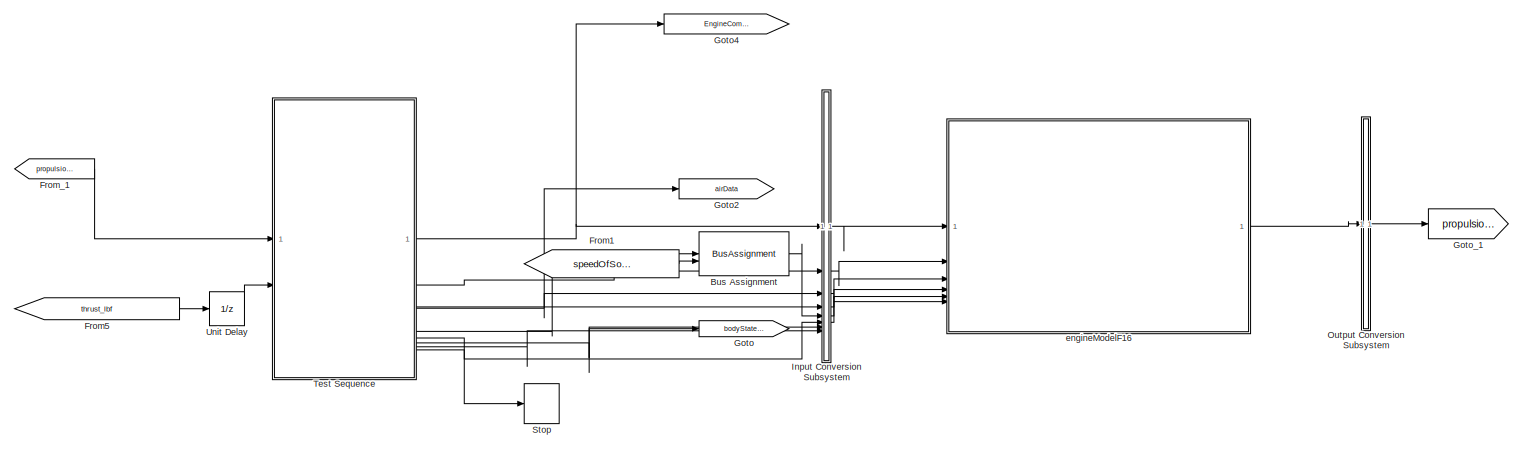
[diagram: root canvas - part 1/2, full width, top band]
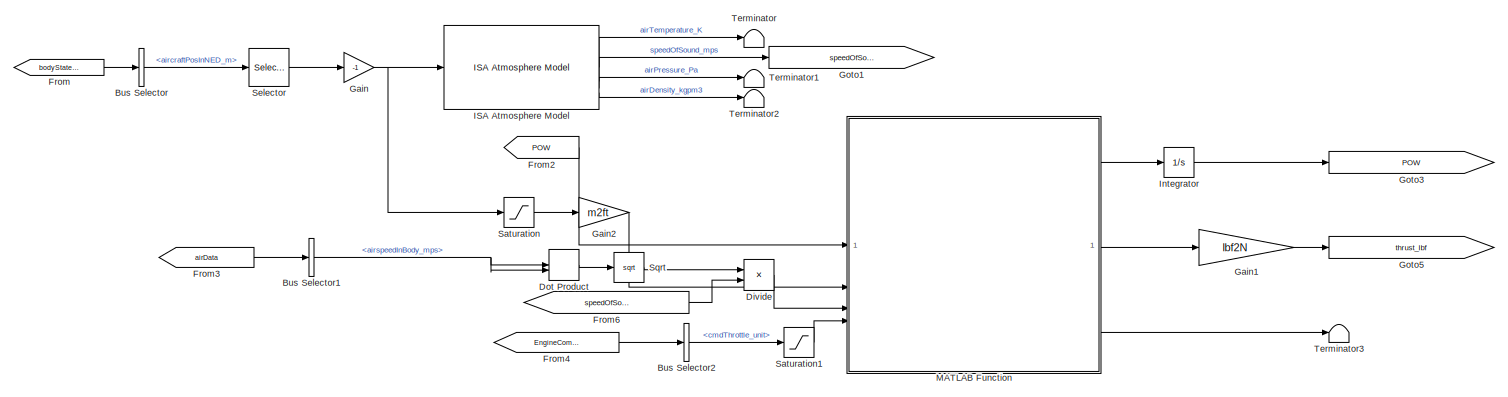
[diagram: root canvas - part 2/2, full width, bottom band]
MODEL slx_ce1b699dad0e
KIND model
CONFIG AbsTol = auto
CONFIG EnableMultiTasking = off
CONFIG FixedStep = auto
CONFIG MaxStep = auto
CONFIG MinStep = auto
CONFIG RelTol = 1e-3
CONFIG SampleTimeConstraint = Unconstrained
CONFIG SolverName = VariableStepAuto
CONFIG StartTime = 0.0
CONFIG StopTime = 10.0
BLOCK [BusAssignment] Bus Assignment
  AssignedSignals = speedOfSound_mps
BLOCK [BusSelector] Bus Selector
  OutputSignals = aircraftPosInNED_m
BLOCK [BusSelector] Bus Selector1
  OutputSignals = airspeedInBody_mps
BLOCK [BusSelector] Bus Selector2
  OutputSignals = cmdThrottle_unit
BLOCK [Product] Divide
  Inputs = */
BLOCK [DotProduct] Dot Product
  OutDataTypeStr = Inherit: Inherit via internal rule
BLOCK [From] From
  GotoTag = bodyStateBus
BLOCK [From] From1
  GotoTag = speedOfSound_mps
BLOCK [From] From2
  GotoTag = POW
BLOCK [From] From3
  GotoTag = airData
BLOCK [From] From4
  GotoTag = EngineCommandBus
BLOCK [From] From5
  GotoTag = thrust_lbf
BLOCK [From] From6
  GotoTag = speedOfSound_mps
BLOCK [From] From_1
  GotoTag = propulsionBus
BLOCK [Gain] Gain
  Gain = -1
BLOCK [Gain] Gain1
  Gain = lbf2N
BLOCK [Gain] Gain2
  Gain = m2ft
BLOCK [Goto] Goto
  GotoTag = bodyStateBus
BLOCK [Goto] Goto1
  GotoTag = speedOfSound_mps
BLOCK [Goto] Goto2
  GotoTag = airData
BLOCK [Goto] Goto3
  GotoTag = POW
BLOCK [Goto] Goto4
  GotoTag = EngineCommandBus
BLOCK [Goto] Goto5
  GotoTag = thrust_lbf
BLOCK [Goto] Goto_1
  GotoTag = propulsionBus
BLOCK [Reference] ISA Atmosphere Model  REF=aerolibatmos2/ISA Atmosphere Model
  SourceBlock = aerolibatmos2/ISA Atmosphere Model
  SourceType = International Standard Atmosphere Model
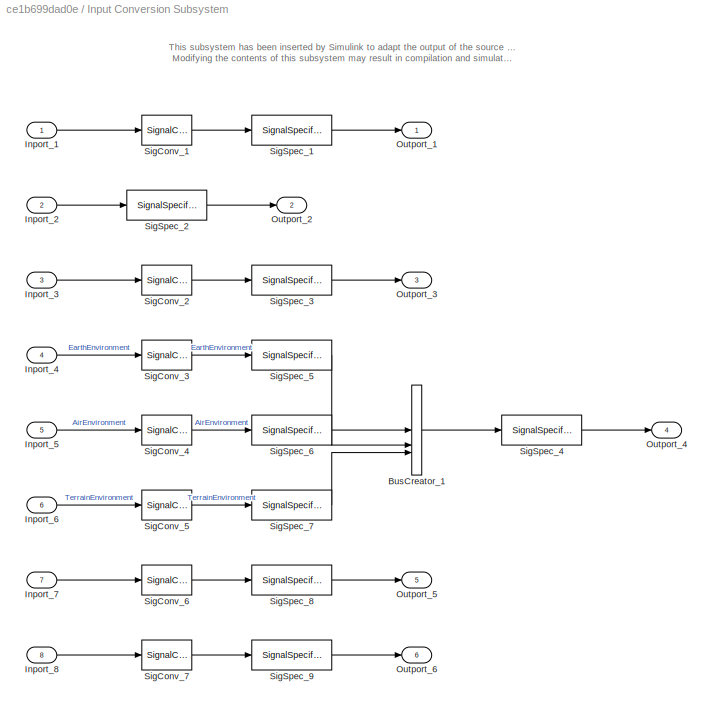
BLOCK [SubSystem] Input Conversion Subsystem
  AttributesFormatString = %<Description>
  Description = Signal spec.\nand routing
  Permissions = ReadOnly
  PermitHierarchicalResolution = ExplicitOnly
  Tag = __SLT_ICS__
  TreatAsGroupedWhenPropagatingVariantConditions = off
  UserDataPersistent = on
BLOCK [BusCreator] Input Conversion Subsystem/BusCreator_1
  InheritFromInputs = on
  Inputs = 3
  OutDataTypeStr = Bus: EnvironmentBus
BLOCK [Inport] Input Conversion Subsystem/Inport_1
BLOCK [Inport] Input Conversion Subsystem/Inport_2
  Port = 2
BLOCK [Inport] Input Conversion Subsystem/Inport_3
  Port = 3
BLOCK [Inport] Input Conversion Subsystem/Inport_4
  Port = 4
BLOCK [Inport] Input Conversion Subsystem/Inport_5
  Port = 5
BLOCK [Inport] Input Conversion Subsystem/Inport_6
  Port = 6
BLOCK [Inport] Input Conversion Subsystem/Inport_7
  Port = 7
BLOCK [Inport] Input Conversion Subsystem/Inport_8
  Port = 8
BLOCK [Outport] Input Conversion Subsystem/Outport_1
BLOCK [Outport] Input Conversion Subsystem/Outport_2
  Port = 2
BLOCK [Outport] Input Conversion Subsystem/Outport_3
  Port = 3
BLOCK [Outport] Input Conversion Subsystem/Outport_4
  Port = 4
BLOCK [Outport] Input Conversion Subsystem/Outport_5
  Port = 5
BLOCK [Outport] Input Conversion Subsystem/Outport_6
  Port = 6
BLOCK [SignalConversion] Input Conversion Subsystem/SigConv_1
  ConversionOutput = Virtual bus
  OverrideOpt = off
BLOCK [SignalConversion] Input Conversion Subsystem/SigConv_2
  ConversionOutput = Virtual bus
  OverrideOpt = off
BLOCK [SignalConversion] Input Conversion Subsystem/SigConv_3
  ConversionOutput = Nonvirtual bus
  OverrideOpt = off
BLOCK [SignalConversion] Input Conversion Subsystem/SigConv_4
  ConversionOutput = Nonvirtual bus
  OverrideOpt = off
BLOCK [SignalConversion] Input Conversion Subsystem/SigConv_5
  ConversionOutput = Nonvirtual bus
  OverrideOpt = off
BLOCK [SignalConversion] Input Conversion Subsystem/SigConv_6
  ConversionOutput = Virtual bus
  OverrideOpt = off
BLOCK [SignalConversion] Input Conversion Subsystem/SigConv_7
  ConversionOutput = Virtual bus
  OverrideOpt = off
BLOCK [SignalSpecification] Input Conversion Subsystem/SigSpec_1
  OutDataTypeStr = Bus: EngineCommandBus
BLOCK [SignalSpecification] Input Conversion Subsystem/SigSpec_2
  Dimensions = [1]
  OutDataTypeStr = double
  SampleTime = [-1, 0]
  SignalType = real
  VarSizeSig = No
BLOCK [SignalSpecification] Input Conversion Subsystem/SigSpec_3
  OutDataTypeStr = Bus: AirDataBus
BLOCK [SignalSpecification] Input Conversion Subsystem/SigSpec_4
  OutDataTypeStr = Bus: EnvironmentBus
  SampleTime = [-1, 0]
BLOCK [SignalSpecification] Input Conversion Subsystem/SigSpec_5
  BusOutputAsStruct = on
  Dimensions = [1]
  OutDataTypeStr = Bus: EarthEnvironmentBus
  SignalType = real
  VarSizeSig = No
BLOCK [SignalSpecification] Input Conversion Subsystem/SigSpec_6
  BusOutputAsStruct = on
  Dimensions = [1]
  OutDataTypeStr = Bus: AirEnvironmentBus
  SignalType = real
  VarSizeSig = No
BLOCK [SignalSpecification] Input Conversion Subsystem/SigSpec_7
  BusOutputAsStruct = on
  Dimensions = [1]
  OutDataTypeStr = Bus: TerrainEnvironmentBus
  SignalType = real
  VarSizeSig = No
BLOCK [SignalSpecification] Input Conversion Subsystem/SigSpec_8
  OutDataTypeStr = Bus: BodyStateBus
BLOCK [SignalSpecification] Input Conversion Subsystem/SigSpec_9
  OutDataTypeStr = Bus: FailureBus
BLOCK [Integrator] Integrator
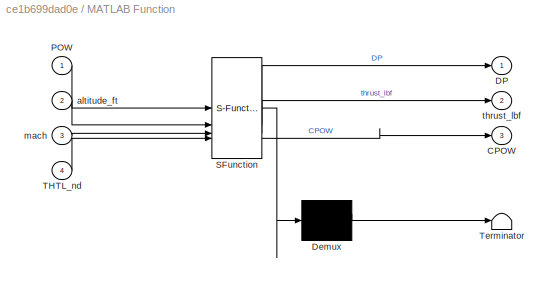
BLOCK [SubSystem] MATLAB Function
  ErrorFcn = Stateflow.Translate.translate
  PermitHierarchicalResolution = ExplicitOnly
  SFBlockType = MATLAB Function
  TreatAsAtomicUnit = on
BLOCK [Demux] MATLAB Function/ Demux 
  Outputs = 1
BLOCK [S-Function] MATLAB Function/ SFunction 
  EnableBusSupport = on
  FunctionName = sf_sfun
  PortCounts = [4 4]
  SFcnIsStateOwnerBlock = off
  SFunctionDeploymentMode = off
  Tag = Stateflow S-Function 2
BLOCK [Terminator] MATLAB Function/ Terminator 
BLOCK [Outport] MATLAB Function/CPOW
  Port = 3
BLOCK [Outport] MATLAB Function/DP
BLOCK [Inport] MATLAB Function/POW
BLOCK [Inport] MATLAB Function/THTL_nd
  Port = 4
BLOCK [Inport] MATLAB Function/altitude_ft
  Port = 2
BLOCK [Inport] MATLAB Function/mach
  Port = 3
BLOCK [Outport] MATLAB Function/thrust_lbf
  Port = 2
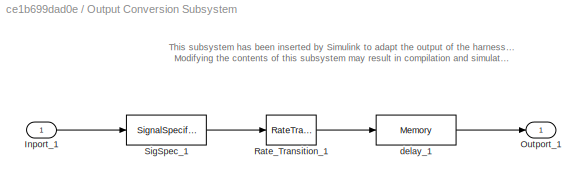
BLOCK [SubSystem] Output Conversion Subsystem
  AttributesFormatString = %<Description>
  Description = Signal spec.\nand routing
  Permissions = ReadOnly
  PermitHierarchicalResolution = ExplicitOnly
  Tag = __SLT_OCS__
  TreatAsGroupedWhenPropagatingVariantConditions = off
  UserDataPersistent = on
BLOCK [Inport] Output Conversion Subsystem/Inport_1
BLOCK [Outport] Output Conversion Subsystem/Outport_1
BLOCK [RateTransition] Output Conversion Subsystem/Rate_Transition_1
  OutPortSampleTimeOpt = Inherit
BLOCK [SignalSpecification] Output Conversion Subsystem/SigSpec_1
  Dimensions = [1]
  OutDataTypeStr = Bus: PropulsionBus
  SignalType = real
  VarSizeSig = No
BLOCK [Memory] Output Conversion Subsystem/delay_1
  InitialCondition = IC1
BLOCK [Saturate] Saturation
  LowerLimit = -1000
  UpperLimit = 850000
BLOCK [Saturate] Saturation1
  LowerLimit = 0
  UpperLimit = 1
BLOCK [Selector] Selector
  IndexOptions = Index vector (dialog)
  Indices = 3
  InputPortWidth = 3
  OutputSizes = 1
BLOCK [Sqrt] Sqrt
BLOCK [Stop] Stop
BLOCK [Terminator] Terminator
BLOCK [Terminator] Terminator1
BLOCK [Terminator] Terminator2
BLOCK [Terminator] Terminator3
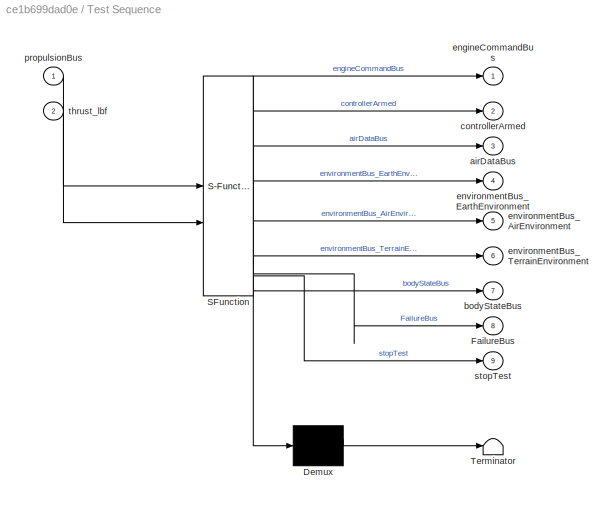
BLOCK [SubSystem] Test Sequence
  ErrorFcn = Stateflow.Translate.translate
  PermitHierarchicalResolution = ExplicitOnly
  SFBlockType = Test Sequence
  ShowPortLabels = none
  TreatAsAtomicUnit = on
BLOCK [Demux] Test Sequence/ Demux 
  Outputs = 1
BLOCK [S-Function] Test Sequence/ SFunction 
  EnableBusSupport = on
  FunctionName = sf_sfun
  Parameters = 1
  PortCounts = [2 10]
  SFcnIsStateOwnerBlock = off
  SFunctionDeploymentMode = off
  Tag = Stateflow S-Function 4
BLOCK [Terminator] Test Sequence/ Terminator 
BLOCK [Outport] Test Sequence/FailureBus
  Port = 8
BLOCK [Outport] Test Sequence/airDataBus
  Port = 3
BLOCK [Outport] Test Sequence/bodyStateBus
  Port = 7
BLOCK [Outport] Test Sequence/controllerArmed
  Port = 2
BLOCK [Outport] Test Sequence/engineCommandBus
BLOCK [Outport] Test Sequence/environmentBus_AirEnvironment
  Port = 5
BLOCK [Outport] Test Sequence/environmentBus_EarthEnvironment
  Port = 4
BLOCK [Outport] Test Sequence/environmentBus_TerrainEnvironment
  Port = 6
BLOCK [Inport] Test Sequence/propulsionBus
BLOCK [Outport] Test Sequence/stopTest
  Port = 9
BLOCK [Inport] Test Sequence/thrust_lbf
  Port = 2
BLOCK [UnitDelay] Unit Delay
  HasFrameUpgradeWarning = on
  SampleTime = -1
BLOCK [ModelReference] engineModelF16
  ModelNameDialog = engineModelF16
  ModelReferenceVersion = 1.124
ANNOTATION Input Conversion Subsystem: This subsystem has been inserted by Simulink to adapt the output of the source blocks to the interface required by the harnessed component. Modifying the contents of this subsystem may result in compilation and simulation failure.
ANNOTATION Output Conversion Subsystem: This subsystem has been inserted by Simulink to adapt the output of the harnessed component to the interface required by the sink blocks. Modifying the contents of this subsystem may result in compilation and simulation failure.
LINE Bus Assignment:1 -> Input Conversion Subsystem:5
NET Bus Selector1:1 -> Dot Product:1, Dot Product:2
LINE Bus Selector2:1 -> Saturation1:1
LINE Bus Selector:1 -> Selector:1
LINE Divide:1 -> MATLAB Function:3
LINE Dot Product:1 -> Sqrt:1
LINE From1:1 -> Bus Assignment:2
LINE From2:1 -> MATLAB Function:1
LINE From3:1 -> Bus Selector1:1
LINE From4:1 -> Bus Selector2:1
LINE From5:1 -> Unit Delay:1
LINE From6:1 -> Divide:2
LINE From:1 -> Bus Selector:1
LINE From_1:1 -> Test Sequence:1
LINE Gain1:1 -> Goto5:1
LINE Gain2:1 -> MATLAB Function:2
NET Gain:1 -> ISA Atmosphere Model:1, Saturation:1
LINE ISA Atmosphere Model:1 -> Terminator:1
LINE ISA Atmosphere Model:2 -> Goto1:1
LINE ISA Atmosphere Model:3 -> Terminator1:1
LINE ISA Atmosphere Model:4 -> Terminator2:1
LINE Input Conversion Subsystem/BusCreator_1:1 -> Input Conversion Subsystem/SigSpec_4:1
LINE Input Conversion Subsystem/Inport_1:1 -> Input Conversion Subsystem/SigConv_1:1
LINE Input Conversion Subsystem/Inport_2:1 -> Input Conversion Subsystem/SigSpec_2:1
LINE Input Conversion Subsystem/Inport_3:1 -> Input Conversion Subsystem/SigConv_2:1
LINE Input Conversion Subsystem/Inport_4:1 -> Input Conversion Subsystem/SigConv_3:1
LINE Input Conversion Subsystem/Inport_5:1 -> Input Conversion Subsystem/SigConv_4:1
LINE Input Conversion Subsystem/Inport_6:1 -> Input Conversion Subsystem/SigConv_5:1
LINE Input Conversion Subsystem/Inport_7:1 -> Input Conversion Subsystem/SigConv_6:1
LINE Input Conversion Subsystem/Inport_8:1 -> Input Conversion Subsystem/SigConv_7:1
LINE Input Conversion Subsystem/SigConv_1:1 -> Input Conversion Subsystem/SigSpec_1:1
LINE Input Conversion Subsystem/SigConv_2:1 -> Input Conversion Subsystem/SigSpec_3:1
LINE Input Conversion Subsystem/SigConv_3:1 -> Input Conversion Subsystem/SigSpec_5:1
LINE Input Conversion Subsystem/SigConv_4:1 -> Input Conversion Subsystem/SigSpec_6:1
LINE Input Conversion Subsystem/SigConv_5:1 -> Input Conversion Subsystem/SigSpec_7:1
LINE Input Conversion Subsystem/SigConv_6:1 -> Input Conversion Subsystem/SigSpec_8:1
LINE Input Conversion Subsystem/SigConv_7:1 -> Input Conversion Subsystem/SigSpec_9:1
LINE Input Conversion Subsystem/SigSpec_1:1 -> Input Conversion Subsystem/Outport_1:1
LINE Input Conversion Subsystem/SigSpec_2:1 -> Input Conversion Subsystem/Outport_2:1
LINE Input Conversion Subsystem/SigSpec_3:1 -> Input Conversion Subsystem/Outport_3:1
LINE Input Conversion Subsystem/SigSpec_4:1 -> Input Conversion Subsystem/Outport_4:1
LINE Input Conversion Subsystem/SigSpec_5:1 -> Input Conversion Subsystem/BusCreator_1:1
LINE Input Conversion Subsystem/SigSpec_6:1 -> Input Conversion Subsystem/BusCreator_1:2
LINE Input Conversion Subsystem/SigSpec_7:1 -> Input Conversion Subsystem/BusCreator_1:3
LINE Input Conversion Subsystem/SigSpec_8:1 -> Input Conversion Subsystem/Outport_5:1
LINE Input Conversion Subsystem/SigSpec_9:1 -> Input Conversion Subsystem/Outport_6:1
LINE Input Conversion Subsystem:1 -> engineModelF16:1
LINE Input Conversion Subsystem:2 -> engineModelF16:2
LINE Input Conversion Subsystem:3 -> engineModelF16:3
LINE Input Conversion Subsystem:4 -> engineModelF16:4
LINE Input Conversion Subsystem:5 -> engineModelF16:5
LINE Input Conversion Subsystem:6 -> engineModelF16:6
LINE Integrator:1 -> Goto3:1
LINE MATLAB Function:1 -> Integrator:1
LINE MATLAB Function:2 -> Gain1:1
LINE MATLAB Function:3 -> Terminator3:1
LINE Output Conversion Subsystem/Inport_1:1 -> Output Conversion Subsystem/SigSpec_1:1
LINE Output Conversion Subsystem/Rate_Transition_1:1 -> Output Conversion Subsystem/delay_1:1
LINE Output Conversion Subsystem/SigSpec_1:1 -> Output Conversion Subsystem/Rate_Transition_1:1
LINE Output Conversion Subsystem/delay_1:1 -> Output Conversion Subsystem/Outport_1:1
LINE Output Conversion Subsystem:1 -> Goto_1:1
LINE Saturation1:1 -> MATLAB Function:4
LINE Saturation:1 -> Gain2:1
LINE Selector:1 -> Gain:1
LINE Sqrt:1 -> Divide:1
NET Test Sequence:1 -> Goto4:1, Input Conversion Subsystem:1
LINE Test Sequence:2 -> Input Conversion Subsystem:2
NET Test Sequence:3 -> Goto2:1, Input Conversion Subsystem:3
LINE Test Sequence:4 -> Input Conversion Subsystem:4
LINE Test Sequence:5 -> Bus Assignment:1
LINE Test Sequence:6 -> Input Conversion Subsystem:6
NET Test Sequence:7 -> Goto:1, Input Conversion Subsystem:7
LINE Test Sequence:8 -> Input Conversion Subsystem:8
LINE Test Sequence:9 -> Stop:1
LINE Unit Delay:1 -> Test Sequence:2
LINE engineModelF16:1 -> Output Conversion Subsystem:1
note: NET lines group one-source signal fan-out (src -> all destinations, sorted); 1:1 wires keep LINE
CHART MATLAB Function states=1 transitions=1
  STATE_LABEL 'eML_blk_kernel()'
  STATE_LABEL 'SCRIPT:\nfunction [DP,thrust_lbf, CPOW] = fcn(POW, altitude_ft, mach, THTL_nd)\n\ncoder.extrinsic("PDOT")\ncoder.extrinsic("THRUST")\ncoder.extrinsic("TGEAR")\nthrust_lbf = 0;\nCPOW = 0;\nDP = 0;\n\nCPOW = TGEAR(THTL_nd);\nthrust_lbf = THRUST(POW,altitude_ft, mach);\nDP = PDOT(POW, CPOW);\n'
CHART Test Sequence states=15 transitions=15
  STATE_LABEL 'Scenario_1'
  STATE_LABEL 'Initialize\n\n%% Initialize data outputs.\nengineCommandBus.cmdThrottle_unit = 0;\ncontrollerArmed = 0;\nairDataBus.airspeedInBody_mps = zeros(3,1);\nairDataBus.alpha_rad = 0;\nairDataBus.beta_rad = 0;\nenvironmentBus_EarthEnvironment.gravityScalar_mps2 = 0;\nenvironmentBus_EarthEnvironment.worldMagneticFieldInNED_nT = zeros(3,1);\nenvironmentBus_AirEnvironment.airTemperature_K = 0;\nenvironmentBus_AirEnviro...<+888ch>'
  STATE_LABEL 'commandThrottle\nengineCommandBus.cmdThrottle_unit = 0.02;'
  STATE_LABEL 'verifyControllerDisarm\nverify(isClose(propulsionBus.EngineForcesMomentsBus.forcesInBody_N(1),0))'
  STATE_LABEL 'armController\ncontrollerArmed = 1;\nengineCommandBus.cmdThrottle_unit = 0.2;'
  STATE_LABEL "verifyThorttle\nverify(isClose(thrust_lbf, propulsionBus.EngineForcesMomentsBus.forcesInBody_N(1), 'atol', 1))"
  STATE_LABEL 'maxCommandThrottle\nengineCommandBus.cmdThrottle_unit=10.5;'
  STATE_LABEL "verifyMaxThrust\nverify(propulsionBus.EngineForcesMomentsBus.forcesInBody_N(1) < 130000) % 130kN is what is listed on google as max thrust\nverify(isClose(thrust_lbf, propulsionBus.EngineForcesMomentsBus.forcesInBody_N(1), 'atol', 1))"
  STATE_LABEL 'simulateAirspeed\nairDataBus.airspeedInBody_mps(1) = 100;\nbodyStateBus.aircraftPosInNED_m(3) = -1000;\n'
  STATE_LABEL "verifyWithAirspeed\nverify(isClose(thrust_lbf, propulsionBus.EngineForcesMomentsBus.forcesInBody_N(1), 'atol', 1))"
  STATE_LABEL 'increaseAirspeed\nairDataBus.airspeedInBody_mps(1) = 250;\n'
  STATE_LABEL "verifyIncreaseAirspeed\nverify(isClose(thrust_lbf, propulsionBus.EngineForcesMomentsBus.forcesInBody_N(1), 'atol', 1))"
  STATE_LABEL 'increaseAltitude\nbodyStateBus.aircraftPosInNED_m(3) = -12000;'
  STATE_LABEL "verifyIncreaseAltitude\nverify(isClose(thrust_lbf, propulsionBus.EngineForcesMomentsBus.forcesInBody_N(1), 'atol', 1))"
  STATE_LABEL 'EndTest\nstopTest = true;'
  STATE_LABEL '[\ntrue\n]'
  STATE_LABEL '[\nafter(2,sec)\n]'
  STATE_LABEL '[\nafter(1,sec)\n]'
  STATE_LABEL '[\nafter(6,sec)\n]'
  STATE_LABEL '[\nafter(1,sec)\n]'
  STATE_LABEL '[\nafter(6,sec)\n]'
  STATE_LABEL '[\nafter(1, sec)\n]'
  STATE_LABEL '[\nafter(6,sec)\n]'
  STATE_LABEL '[\nafter(1,sec)\n]'
  STATE_LABEL '[\nafter(6,sec)\n]'
  STATE_LABEL '[\nafter(1,sec)\n]'
  STATE_LABEL '[\nafter(6,sec)\n]'
  STATE_LABEL '[\nafter(1,sec)\n]'
  STATE_LABEL 'Initialize\n\n%% Initialize data outputs.\nengineCommandBus.cmdThrottle_unit = 0;\ncontrollerArmed = 0;\nairDataBus.airspeedInBody_mps = zeros(3,1);\nairDataBus.alpha_rad = 0;\nairDataBus.beta_rad = 0;\nenvironmentBus_EarthEnvironment.gravityScalar_mps2 = 0;\nenvironmentBus_EarthEnvironment.worldMagneticFieldInNED_nT = zeros(3,1);\nenvironmentBus_AirEnvironment.airTemperature_K = 0;\nenvironmentBus_AirEnviro...<+888ch>'
  STATE_LABEL 'commandThrottle\nengineCommandBus.cmdThrottle_unit = 0.02;'
  STATE_LABEL 'verifyControllerDisarm\nverify(isClose(propulsionBus.EngineForcesMomentsBus.forcesInBody_N(1),0))'
  STATE_LABEL 'armController\ncontrollerArmed = 1;\nengineCommandBus.cmdThrottle_unit = 0.2;'
  STATE_LABEL "verifyThorttle\nverify(isClose(thrust_lbf, propulsionBus.EngineForcesMomentsBus.forcesInBody_N(1), 'atol', 1))"
  STATE_LABEL 'maxCommandThrottle\nengineCommandBus.cmdThrottle_unit=10.5;'
  STATE_LABEL "verifyMaxThrust\nverify(propulsionBus.EngineForcesMomentsBus.forcesInBody_N(1) < 130000) % 130kN is what is listed on google as max thrust\nverify(isClose(thrust_lbf, propulsionBus.EngineForcesMomentsBus.forcesInBody_N(1), 'atol', 1))"
  STATE_LABEL 'simulateAirspeed\nairDataBus.airspeedInBody_mps(1) = 100;\nbodyStateBus.aircraftPosInNED_m(3) = -1000;\n'
  STATE_LABEL "verifyWithAirspeed\nverify(isClose(thrust_lbf, propulsionBus.EngineForcesMomentsBus.forcesInBody_N(1), 'atol', 1))"
  STATE_LABEL 'increaseAirspeed\nairDataBus.airspeedInBody_mps(1) = 250;\n'
  STATE_LABEL "verifyIncreaseAirspeed\nverify(isClose(thrust_lbf, propulsionBus.EngineForcesMomentsBus.forcesInBody_N(1), 'atol', 1))"
  STATE_LABEL 'increaseAltitude\nbodyStateBus.aircraftPosInNED_m(3) = -12000;'
